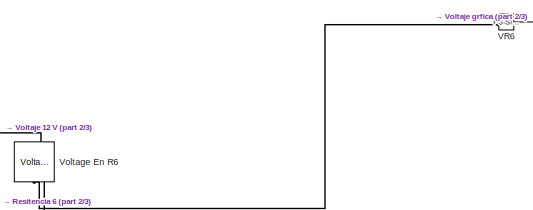
[diagram: root canvas - part 1/3, top center region]
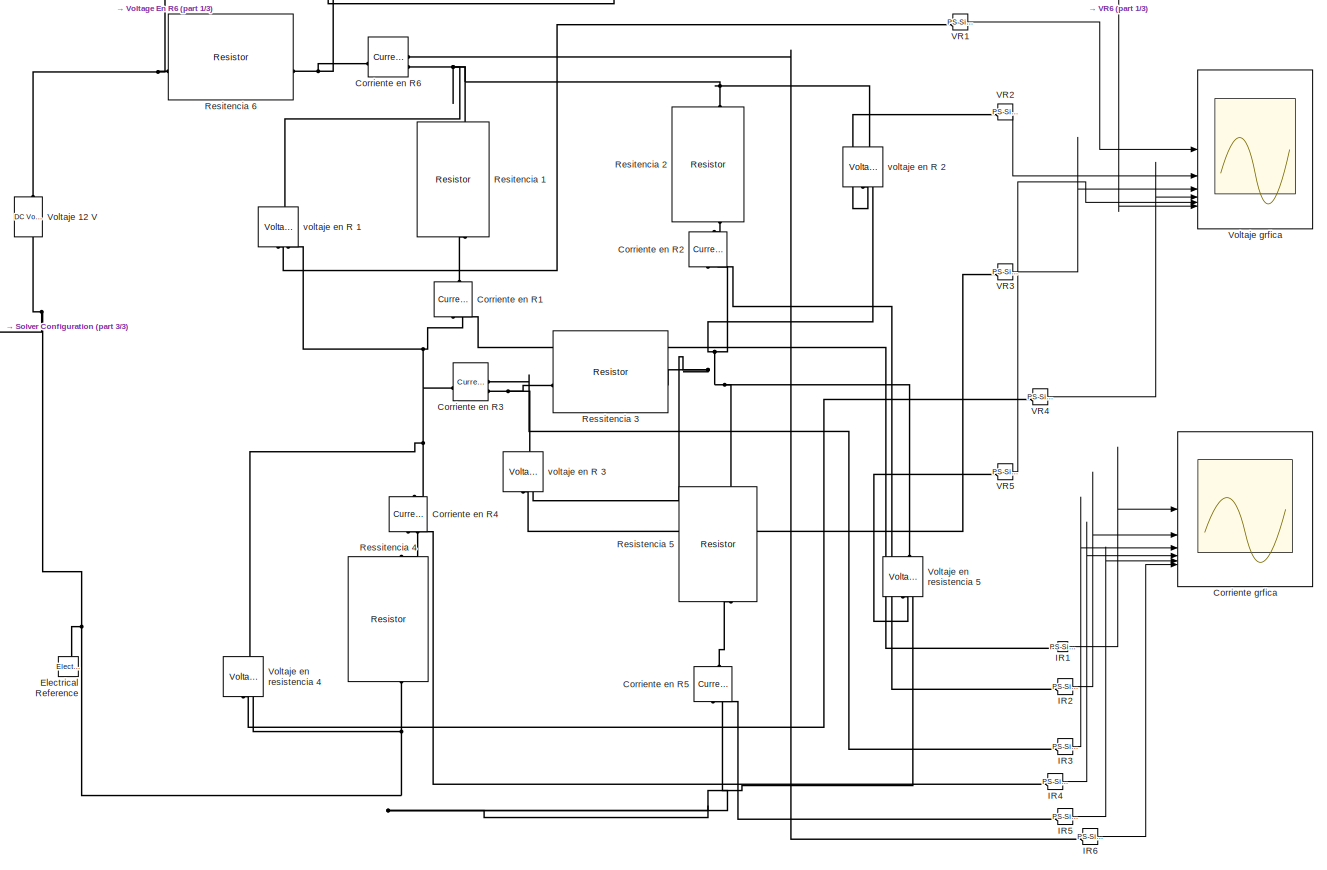
[diagram: root canvas - part 2/3, most of the canvas]
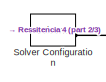
[diagram: root canvas - part 3/3, middle left region]
MODEL slx_dfd622e7120b
KIND model
CONFIG AbsTol = auto
CONFIG EnableMultiTasking = off
CONFIG FixedStep = auto
CONFIG MaxStep = auto
CONFIG MinStep = auto
CONFIG RelTol = 1e-3
CONFIG SampleTimeConstraint = Unconstrained
CONFIG SolverName = VariableStepAuto
CONFIG StartTime = 0.0
CONFIG StopTime = 10.0
BLOCK [Reference] Corriente en R1  REF=fl_lib/Electrical/Electrical Sensors/Current Sensor
  NameLocation = left
  SourceBlock = fl_lib/Electrical/Electrical Sensors/Current Sensor
  SourceType = Current Sensor
BLOCK [Reference] Corriente en R2  REF=fl_lib/Electrical/Electrical Sensors/Current Sensor
  NameLocation = left
  SourceBlock = fl_lib/Electrical/Electrical Sensors/Current Sensor
  SourceType = Current Sensor
BLOCK [Reference] Corriente en R3  REF=fl_lib/Electrical/Electrical Sensors/Current Sensor
  SourceBlock = fl_lib/Electrical/Electrical Sensors/Current Sensor
  SourceType = Current Sensor
BLOCK [Reference] Corriente en R4  REF=fl_lib/Electrical/Electrical Sensors/Current Sensor
  NameLocation = left
  SourceBlock = fl_lib/Electrical/Electrical Sensors/Current Sensor
  SourceType = Current Sensor
BLOCK [Reference] Corriente en R5  REF=fl_lib/Electrical/Electrical Sensors/Current Sensor
  NameLocation = left
  SourceBlock = fl_lib/Electrical/Electrical Sensors/Current Sensor
  SourceType = Current Sensor
BLOCK [Reference] Corriente en R6  REF=fl_lib/Electrical/Electrical Sensors/Current Sensor
  SourceBlock = fl_lib/Electrical/Electrical Sensors/Current Sensor
  SourceType = Current Sensor
BLOCK [Scope] Corriente grfica
  ActiveDisplayYMaximum = 0.074479628548733245
  ActiveDisplayYMinimum = 0.0041332680943392194
  Floating = off
  GraphicalSettings = {"Style":{"BackgroundColor":[0.12941176470588237,0.12941176470588237,0.12941176470588237],"AxesColor":[0.07058823529411765,0.07058823529411765,0.07058823529411765],"LabelsColor":[0.8509803921568627,0.8509803921568627,0.8509803921568627],"PreserveColors":false,"Visible":[true,true,true,true,true,true],"LineStyle":["-","-","-","-","-","-"],"LineWidth":[1.5,1.5,1.5,1.5,1.5,1.5],"BarWidth":[0.9,0.9,0....<+3122ch>
  MultipleDisplayCache = [{"MaxYLimMag":0.061082702447941374,"MaxYLimReal":0.074479628548733245,"MinYLimMag":0,"MinYLimReal":0.0041332680943392194,"PlotAsMagnitudePhase":false,"ShowGrid":true,"ShowLegend":true,"Title":"%<SignalLabel>","YLabel":""}]
  NumInputPorts = 6
  ScopeFrameLocation = window
  ShowLegend = on
  WasSavedAsWebScope = on
  WindowPosition = [1.000000,49.000000,1536.000000,889.000000,]
BLOCK [Reference] Electrical Reference  REF=fl_lib/Electrical/Electrical Elements/Electrical Reference
  NameLocation = right
  SourceBlock = fl_lib/Electrical/Electrical Elements/Electrical Reference
  SourceType = Electrical Reference
BLOCK [Reference] IR1  REF=nesl_utility/PS-Simulink
Converter
  SourceBlock = nesl_utility/PS-Simulink\nConverter
  SourceType = PS-Simulink\nConverter
BLOCK [Reference] IR2  REF=nesl_utility/PS-Simulink
Converter
  SourceBlock = nesl_utility/PS-Simulink\nConverter
  SourceType = PS-Simulink\nConverter
BLOCK [Reference] IR3  REF=nesl_utility/PS-Simulink
Converter
  SourceBlock = nesl_utility/PS-Simulink\nConverter
  SourceType = PS-Simulink\nConverter
BLOCK [Reference] IR4  REF=nesl_utility/PS-Simulink
Converter
  SourceBlock = nesl_utility/PS-Simulink\nConverter
  SourceType = PS-Simulink\nConverter
BLOCK [Reference] IR5  REF=nesl_utility/PS-Simulink
Converter
  SourceBlock = nesl_utility/PS-Simulink\nConverter
  SourceType = PS-Simulink\nConverter
BLOCK [Reference] IR6  REF=nesl_utility/PS-Simulink
Converter
  SourceBlock = nesl_utility/PS-Simulink\nConverter
  SourceType = PS-Simulink\nConverter
BLOCK [Reference] Resistencia 5  REF=fl_lib/Electrical/Electrical Elements/Resistor
  NameLocation = left
  SourceBlock = fl_lib/Electrical/Electrical Elements/Resistor
  SourceType = Resistor
BLOCK [Reference] Resitencia 1  REF=fl_lib/Electrical/Electrical Elements/Resistor
  NameLocation = left
  SourceBlock = fl_lib/Electrical/Electrical Elements/Resistor
  SourceType = Resistor
BLOCK [Reference] Resitencia 2  REF=fl_lib/Electrical/Electrical Elements/Resistor
  NameLocation = left
  SourceBlock = fl_lib/Electrical/Electrical Elements/Resistor
  SourceType = Resistor
BLOCK [Reference] Resitencia 6  REF=fl_lib/Electrical/Electrical Elements/Resistor
  SourceBlock = fl_lib/Electrical/Electrical Elements/Resistor
  SourceType = Resistor
BLOCK [Reference] Ressitencia  3  REF=fl_lib/Electrical/Electrical Elements/Resistor
  SourceBlock = fl_lib/Electrical/Electrical Elements/Resistor
  SourceType = Resistor
BLOCK [Reference] Ressitencia 4  REF=fl_lib/Electrical/Electrical Elements/Resistor
  NameLocation = left
  SourceBlock = fl_lib/Electrical/Electrical Elements/Resistor
  SourceType = Resistor
BLOCK [Reference] Solver Configuration  REF=nesl_utility/Solver
Configuration
  SourceBlock = nesl_utility/Solver\nConfiguration
  SourceType = Solver\nConfiguration
BLOCK [Reference] VR1  REF=nesl_utility/PS-Simulink
Converter
  SourceBlock = nesl_utility/PS-Simulink\nConverter
  SourceType = PS-Simulink\nConverter
BLOCK [Reference] VR2  REF=nesl_utility/PS-Simulink
Converter
  SourceBlock = nesl_utility/PS-Simulink\nConverter
  SourceType = PS-Simulink\nConverter
BLOCK [Reference] VR3  REF=nesl_utility/PS-Simulink
Converter
  SourceBlock = nesl_utility/PS-Simulink\nConverter
  SourceType = PS-Simulink\nConverter
BLOCK [Reference] VR4  REF=nesl_utility/PS-Simulink
Converter
  SourceBlock = nesl_utility/PS-Simulink\nConverter
  SourceType = PS-Simulink\nConverter
BLOCK [Reference] VR5  REF=nesl_utility/PS-Simulink
Converter
  SourceBlock = nesl_utility/PS-Simulink\nConverter
  SourceType = PS-Simulink\nConverter
BLOCK [Reference] VR6  REF=nesl_utility/PS-Simulink
Converter
  SourceBlock = nesl_utility/PS-Simulink\nConverter
  SourceType = PS-Simulink\nConverter
BLOCK [Reference] Voltage En R6  REF=fl_lib/Electrical/Electrical Sensors/Voltage Sensor
  NameLocation = right
  SourceBlock = fl_lib/Electrical/Electrical Sensors/Voltage Sensor
  SourceType = Voltage Sensor
BLOCK [Reference] Voltaje 12 V  REF=fl_lib/Electrical/Electrical Sources/DC Voltage Source
  NameLocation = right
  SourceBlock = fl_lib/Electrical/Electrical Sources/DC Voltage Source
  SourceType = DC Voltage Source
BLOCK [Reference] Voltaje en resistencia 4  REF=fl_lib/Electrical/Electrical Sensors/Voltage Sensor
  NameLocation = right
  SourceBlock = fl_lib/Electrical/Electrical Sensors/Voltage Sensor
  SourceType = Voltage Sensor
BLOCK [Reference] Voltaje en resistencia 5  REF=fl_lib/Electrical/Electrical Sensors/Voltage Sensor
  NameLocation = right
  SourceBlock = fl_lib/Electrical/Electrical Sensors/Voltage Sensor
  SourceType = Voltage Sensor
BLOCK [Scope] Voltaje grfica
  ActiveDisplayYMaximum = 13.541192884133746
  ActiveDisplayYMinimum = -8.6052707177943368
  DataLoggingVariableName = ScopeData1
  Floating = off
  GraphicalSettings = {"AxesScalingProperties":{"AlignXAxis":"Center","AlignYAxis":"Center","AutoScaleXAxisLimits":false,"AxesScaling":"Manual","AxesScalingNumUpdates":10,"ExpandOnly":true,"ScaleAxesLimitsAtStop":false,"XAxisDataRange":100,"YAxisDataRange":80},"Bilevel":{"AutoStateLevel":true,"Enabled":false,"HighStateLevel":2.3,"LowStateLevel":0,"LowerReferenceLevel":10,"MidReferenceLevel":50,"SettleSeek":0.02,"ShowAb...<+3864ch>
  MultipleDisplayCache = [{"MaxYLimMag":14.228848114169216,"MaxYLimReal":13.541192884133746,"MinYLimMag":0,"MinYLimReal":-8.6052707177943368,"PlotAsMagnitudePhase":false,"ShowGrid":true,"ShowLegend":true,"Title":"Voltaje en cada resistencia (Estado estacionario)","YLabel":"Voltaje (V)"}]
  NumInputPorts = 6
  ScopeFrameLocation = window
  ShowLegend = on
  Title = Voltaje en cada resistencia (Estado estacionario)
  WasSavedAsWebScope = on
  WindowPosition = [1.000000,49.000000,1536.000000,889.000000,]
  YLabel = Voltaje (V)
BLOCK [Reference] voltaje en R 1  REF=fl_lib/Electrical/Electrical Sensors/Voltage Sensor
  NameLocation = right
  SourceBlock = fl_lib/Electrical/Electrical Sensors/Voltage Sensor
  SourceType = Voltage Sensor
BLOCK [Reference] voltaje en R 2  REF=fl_lib/Electrical/Electrical Sensors/Voltage Sensor
  NameLocation = right
  SourceBlock = fl_lib/Electrical/Electrical Sensors/Voltage Sensor
  SourceType = Voltage Sensor
BLOCK [Reference] voltaje en R 3  REF=fl_lib/Electrical/Electrical Sensors/Voltage Sensor
  NameLocation = right
  SourceBlock = fl_lib/Electrical/Electrical Sensors/Voltage Sensor
  SourceType = Voltage Sensor
LINE IR1:1 -> Corriente grfica:1
LINE IR2:1 -> Corriente grfica:2
LINE IR3:1 -> Corriente grfica:3
LINE IR4:1 -> Corriente grfica:4
LINE IR5:1 -> Corriente grfica:5
LINE IR6:1 -> Corriente grfica:6
LINE VR1:1 -> Voltaje grfica:1
LINE VR2:1 -> Voltaje grfica:2
LINE VR3:1 -> Voltaje grfica:3
LINE VR4:1 -> Voltaje grfica:4
LINE VR5:1 -> Voltaje grfica:5
LINE VR6:1 -> Voltaje grfica:6
PLINE Corriente en R1:LConn1 -- Resitencia 1:RConn1
PLINE Corriente en R1:RConn1 -- IR1:LConn1
PNET net1: Corriente en R1:RConn2 -- Corriente en R3:LConn1 -- Corriente en R4:LConn1 -- Voltaje en resistencia 4:LConn1 -- voltaje en R 1:RConn2
PLINE Corriente en R2:LConn1 -- Resitencia 2:RConn1
PLINE Corriente en R2:RConn1 -- IR2:LConn1
PNET net2: Corriente en R2:RConn2 -- Resistencia 5:LConn1 -- Ressitencia  3:RConn1 -- Voltaje en resistencia 5:LConn1 -- voltaje en R 2:RConn2 -- voltaje en R 3:RConn2
PLINE Corriente en R3:RConn1 -- IR3:LConn1
PNET net3: Corriente en R3:RConn2 -- Ressitencia  3:LConn1 -- voltaje en R 3:LConn1
PLINE Corriente en R4:RConn1 -- IR4:LConn1
PLINE Corriente en R4:RConn2 -- Ressitencia 4:LConn1
PLINE Corriente en R5:LConn1 -- Resistencia 5:RConn1
PLINE Corriente en R5:RConn1 -- IR5:LConn1
PNET net4: Corriente en R5:RConn2 -- Electrical Reference:LConn1 -- Ressitencia 4:RConn1 -- Solver Configuration:RConn1 -- Voltaje 12 V:RConn1 -- Voltaje en resistencia 4:RConn2 -- Voltaje en resistencia 5:RConn2
PNET net5: Corriente en R6:LConn1 -- Resitencia 6:RConn1 -- Voltage En R6:RConn2
PLINE Corriente en R6:RConn1 -- IR6:LConn1
PNET net6: Corriente en R6:RConn2 -- Resitencia 1:LConn1 -- Resitencia 2:LConn1 -- voltaje en R 1:LConn1 -- voltaje en R 2:LConn1
PNET net7: Resitencia 6:LConn1 -- Voltage En R6:LConn1 -- Voltaje 12 V:LConn1
PLINE VR1:LConn1 -- voltaje en R 1:RConn1
PLINE VR2:LConn1 -- voltaje en R 2:RConn1
PLINE VR3:LConn1 -- voltaje en R 3:RConn1
PLINE VR4:LConn1 -- Voltaje en resistencia 4:RConn1
PLINE VR5:LConn1 -- Voltaje en resistencia 5:RConn1
PLINE VR6:LConn1 -- Voltage En R6:RConn1
note: PNET lines group multi-terminal physical nets as a canonical sorted terminal list (undirected conserving connections); 2-terminal nets keep the pairwise PLINE form
